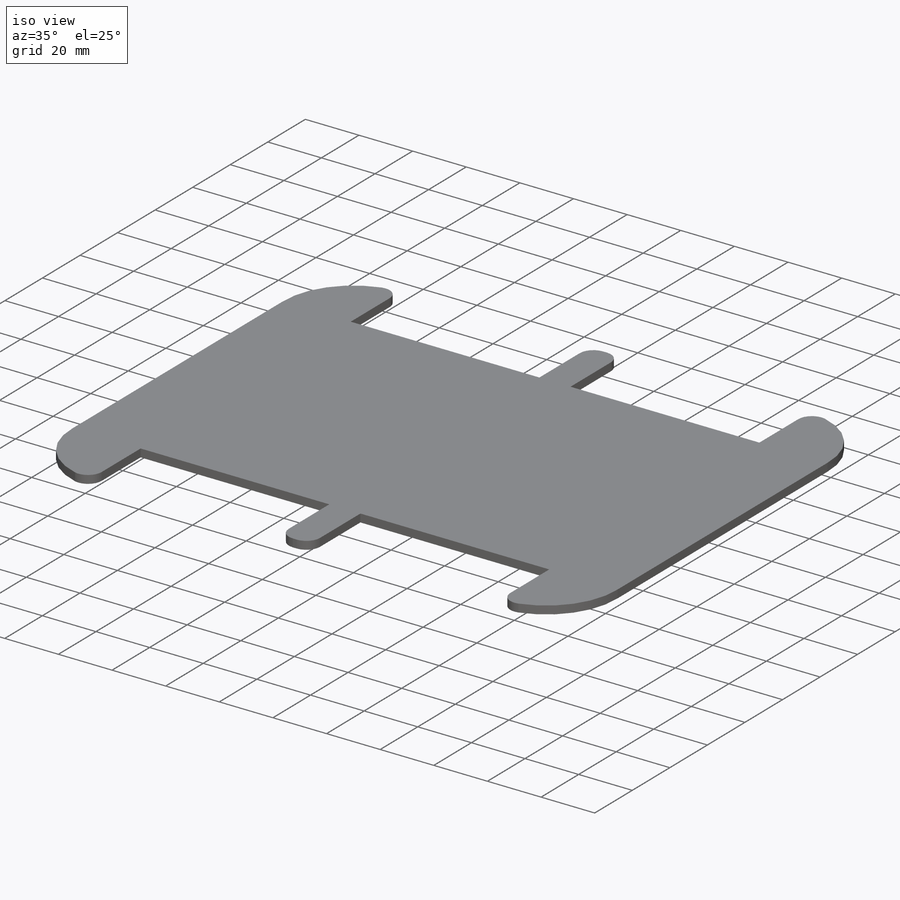
[diagram: iso view]
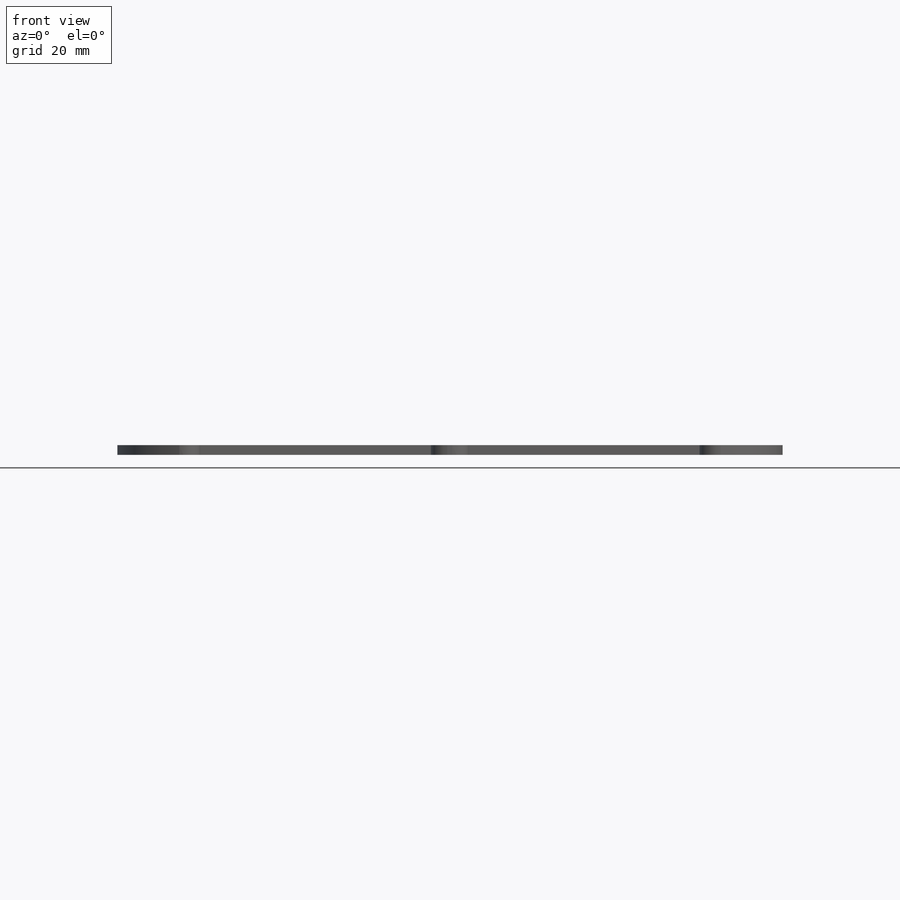
[diagram: front view]
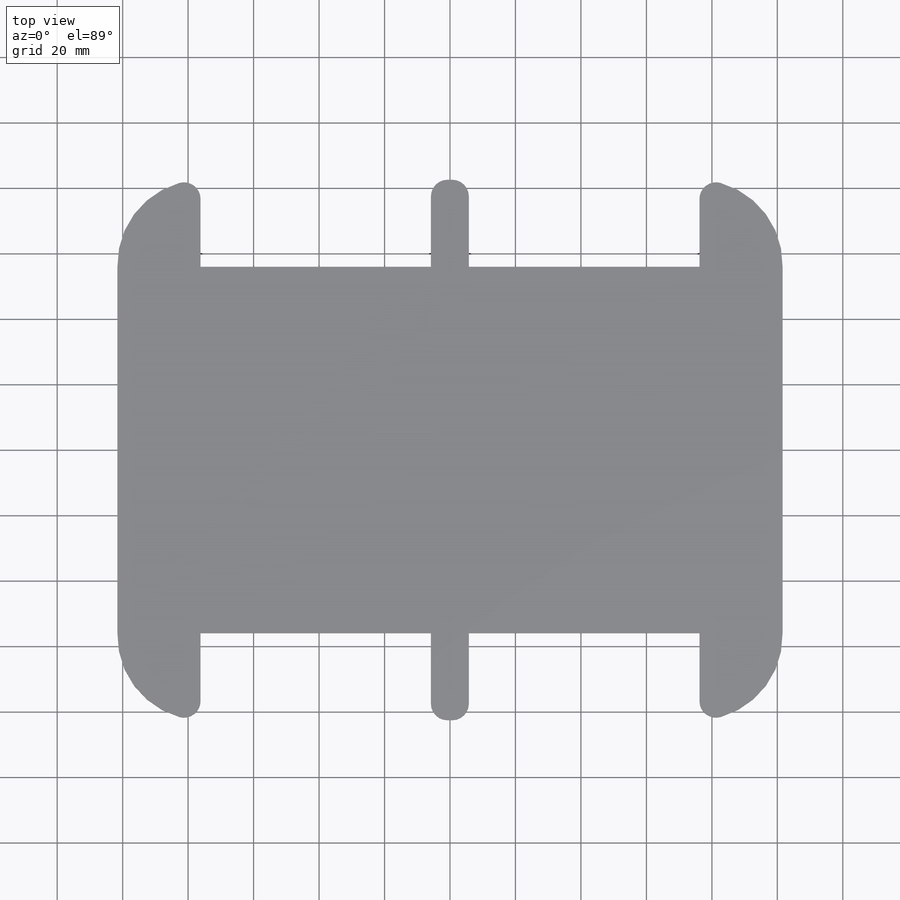
[diagram: top view]
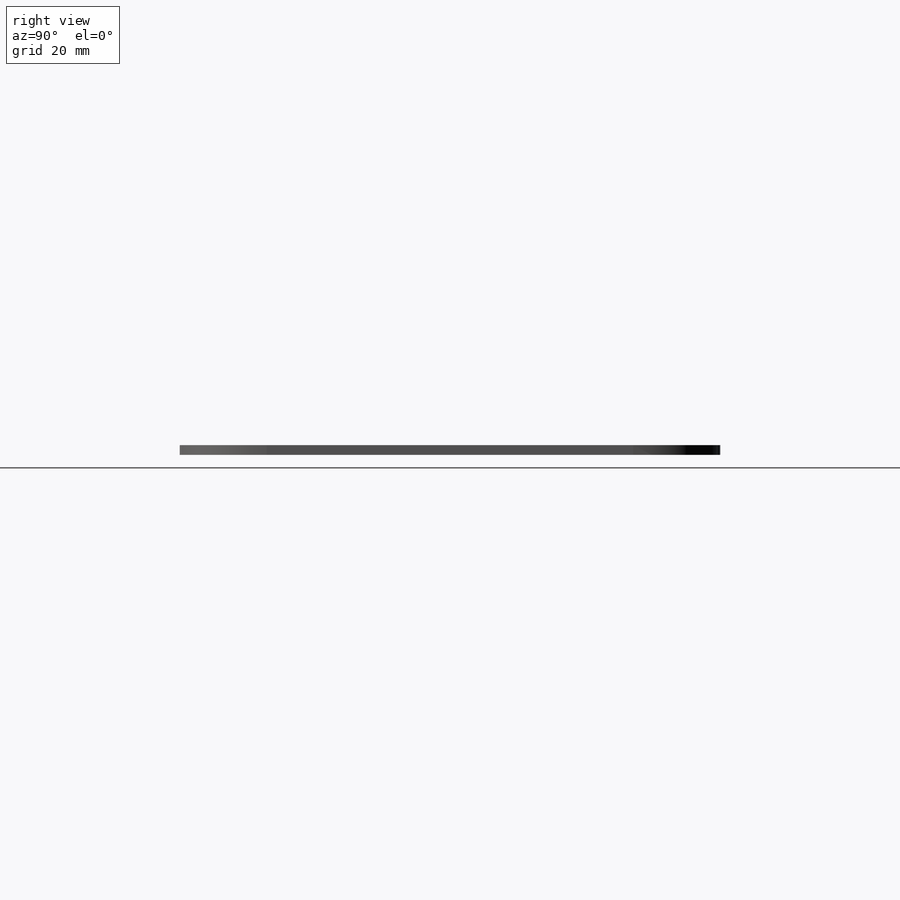
[diagram: right view]
SOLIDWORKS PART (.sldprt)
format: sldprt  version: not decoded by parser v0  size: 257,536 bytes
history: native  units: mm
features: fillet x3, material x1, sketch x1, extrude x1 (+13 scaffold rows collapsed)
feature tree (19):
  scaffold x13  (default folders/planes/origin — collapsed)
  material  "Material <not specified>"
  sketch  "Sketch1"  dims[c1.D1=165.1mm c1.D2=203.2mm c1.D3=26.6mm c1.D4=26.6mm c1.D5=25.4mm c1.D6=25.4mm c1.D7=12.7mm c1.D8=12.7mm c1.D9=12.7mm c1.D10=12.7mm c1.D11=61.608mm c2.D7=63.5mm c2.D8=63.5mm c2.D9=26.6mm c3.D7=~11.612222mm c3.D8=5.842mm]
  extrude  "Boss-Extrude1"  Depth=3mm
  fillet  "Fillet1"  Radius=5.08mm
  fillet  "Fillet2"  Radius=5.08mm
  fillet  "Fillet3"  Radius=5.08mm
decode coverage: 5 of 5 modeling features carry decoded parameters
note: ~ marks probable driven/reference dimensions
note: suppression state not decoded; provenance and decode notes live in map.json
